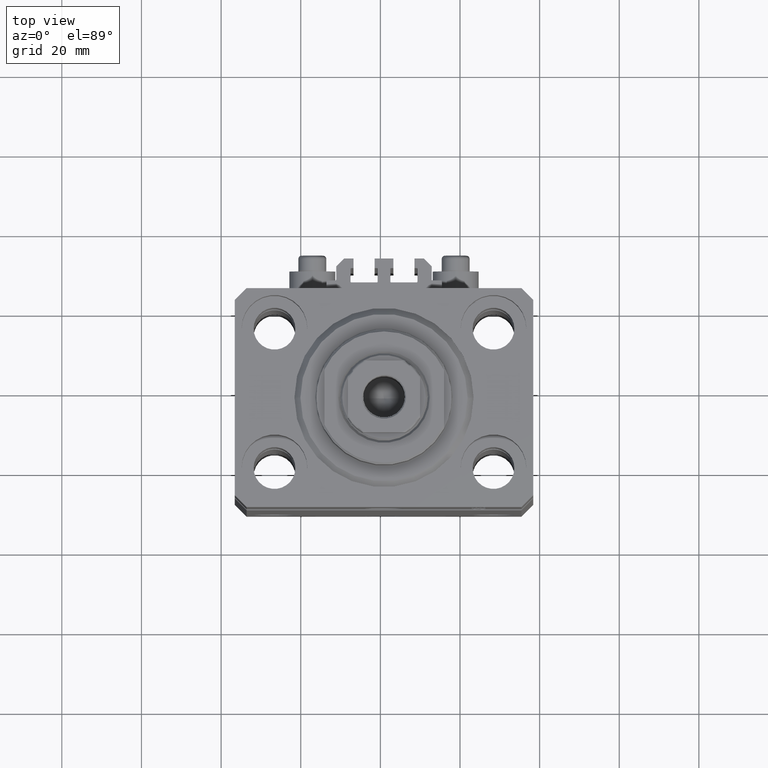
[diagram: clean part render]
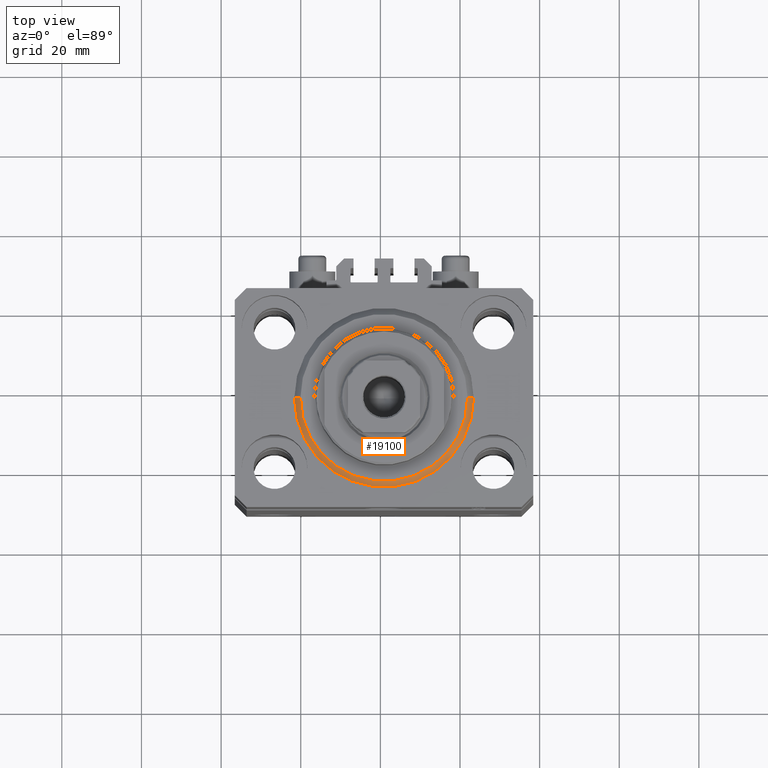
[diagram: same view with one face highlighted and labeled with its STEP entity id]
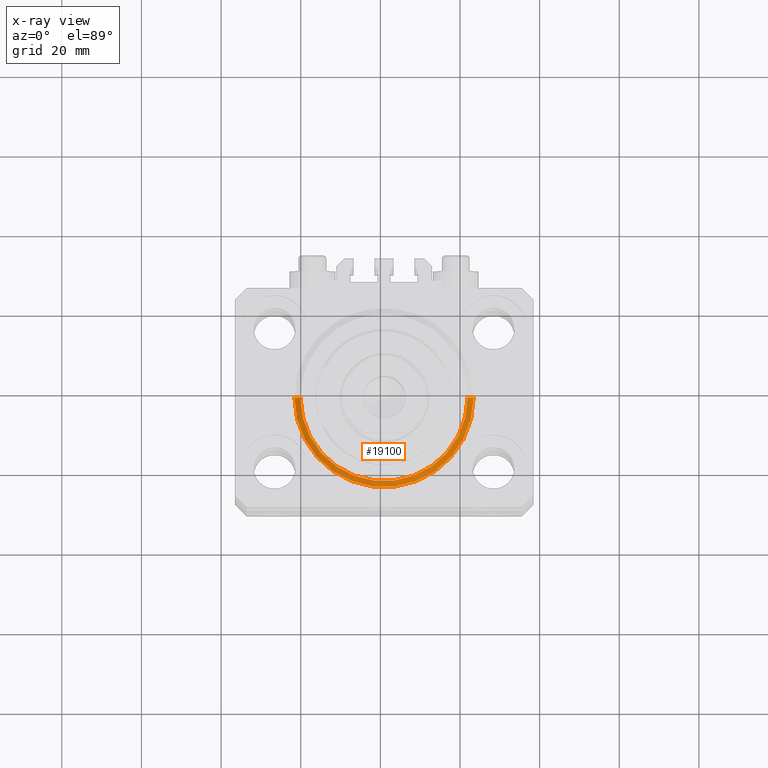
[diagram: x-ray of the same camera — body ghosted, the highlighted face saturated]
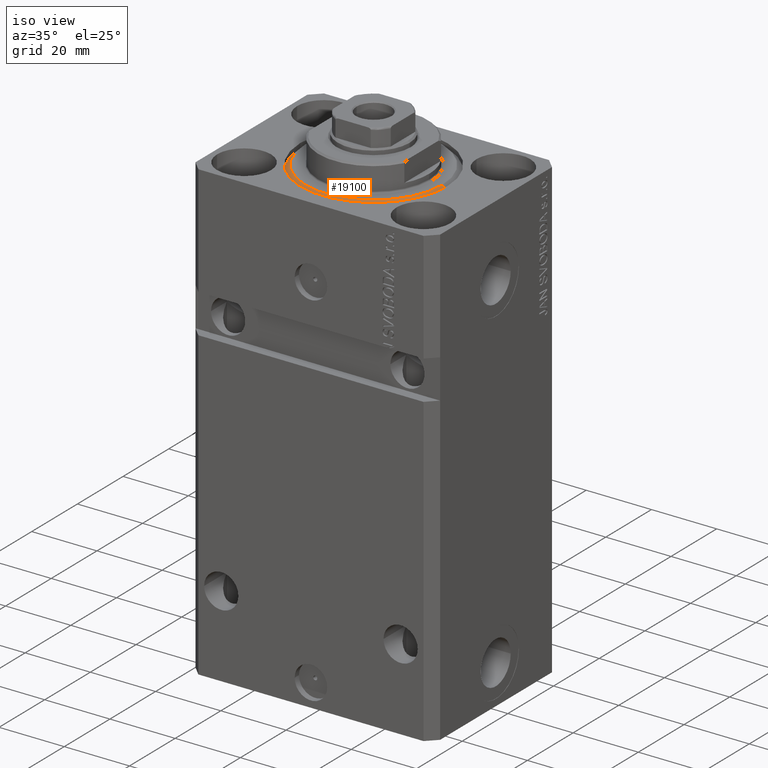
[diagram: same view with one face highlighted and labeled with its STEP entity id]
A machine part, top view. The second image highlights one B-rep face of the part: STEP entity #19100.
The next image is the same camera in x-ray: the body ghosted, the highlighted face saturated — about 0% of this face is hidden behind the body in this view.
A second angle (iso view) of the same face is appended — the face is thin or edge-on in the first view.
In plain terms, the highlighted conical surface has half-angle 45 deg.
Its self-contained STEP definition (entity closure, byte-faithful):
#1261 = DIRECTION ( 'NONE',  ( 0.7071067811865500152, 0.000000000000000000, 0.7071067811865451302 ) ) ;
#3370 = EDGE_LOOP ( 'NONE', ( #17141, #44498, #5620, #39066 ) ) ;
#3670 = CARTESIAN_POINT ( 'NONE',  ( 0.000000000000000000, 0.000000000000000000, 1.500000000000001332 ) ) ;
#4649 = AXIS2_PLACEMENT_3D ( 'NONE', #32494, #46779, #39503 ) ;
#5125 = CIRCLE ( 'NONE', #32206, 22.50000000000000355 ) ;
#5620 = ORIENTED_EDGE ( 'NONE', *, *, #24785, .T. ) ;
#6936 = VECTOR ( 'NONE', #28801, 1000.000000000000114 ) ;
#9734 = VERTEX_POINT ( 'NONE', #34542 ) ;
#11884 = CIRCLE ( 'NONE', #38928, 20.99999999999998934 ) ;
#12640 = CARTESIAN_POINT ( 'NONE',  ( 22.50000000000000355, 0.000000000000000000, 1.500000000000001332 ) ) ;
#14743 = CARTESIAN_POINT ( 'NONE',  ( -22.50000000000000355, 2.755455298081545172E-15, 1.500000000000001332 ) ) ;
#15071 = DIRECTION ( 'NONE',  ( 1.000000000000000000, 0.000000000000000000, 0.000000000000000000 ) ) ;
#15556 = VECTOR ( 'NONE', #1261, 1000.000000000000114 ) ;
#16361 = DIRECTION ( 'NONE',  ( -0.000000000000000000, -0.000000000000000000, -1.000000000000000000 ) ) ;
#17141 = ORIENTED_EDGE ( 'NONE', *, *, #18071, .F. ) ;
#17430 = LINE ( 'NONE', #14743, #6936 ) ;
#18071 = EDGE_CURVE ( 'NONE', #36080, #21666, #17430, .T. ) ;
#19100 = ADVANCED_FACE ( 'NONE', ( #32020 ), #44088, .T. ) ;
#20892 = VERTEX_POINT ( 'NONE', #27184 ) ;
#21666 = VERTEX_POINT ( 'NONE', #33956 ) ;
#24785 = EDGE_CURVE ( 'NONE', #9734, #20892, #31051, .T. ) ;
#27184 = CARTESIAN_POINT ( 'NONE',  ( 22.50000000000000355, 2.755455298081545172E-15, 1.500000000000001332 ) ) ;
#28801 = DIRECTION ( 'NONE',  ( -0.7071067811865500152, 8.659560562354963673E-17, 0.7071067811865451302 ) ) ;
#30418 = DIRECTION ( 'NONE',  ( 1.000000000000000000, 0.000000000000000000, 0.000000000000000000 ) ) ;
#31051 = LINE ( 'NONE', #12640, #15556 ) ;
#31130 = CARTESIAN_POINT ( 'NONE',  ( 0.000000000000000000, 0.000000000000000000, 0.000000000000000000 ) ) ;
#32020 = FACE_OUTER_BOUND ( 'NONE', #3370, .T. ) ;
#32206 = AXIS2_PLACEMENT_3D ( 'NONE', #3670, #36846, #15071 ) ;
#32494 = CARTESIAN_POINT ( 'NONE',  ( 0.000000000000000000, 0.000000000000000000, 1.500000000000001332 ) ) ;
#33641 = EDGE_CURVE ( 'NONE', #9734, #36080, #11884, .T. ) ;
#33956 = CARTESIAN_POINT ( 'NONE',  ( -22.50000000000000355, 0.000000000000000000, 1.500000000000001332 ) ) ;
#34542 = CARTESIAN_POINT ( 'NONE',  ( 20.99999999999998934, 0.000000000000000000, 0.000000000000000000 ) ) ;
#36080 = VERTEX_POINT ( 'NONE', #45158 ) ;
#36846 = DIRECTION ( 'NONE',  ( -0.000000000000000000, -0.000000000000000000, 1.000000000000000000 ) ) ;
#38928 = AXIS2_PLACEMENT_3D ( 'NONE', #31130, #16361, #30418 ) ;
#39066 = ORIENTED_EDGE ( 'NONE', *, *, #42924, .F. ) ;
#39503 = DIRECTION ( 'NONE',  ( 1.000000000000000000, 0.000000000000000000, 0.000000000000000000 ) ) ;
#42924 = EDGE_CURVE ( 'NONE', #21666, #20892, #5125, .T. ) ;
#44088 = CONICAL_SURFACE ( 'NONE', #4649, 22.50000000000000355, 0.7853981633974517207 ) ;
#44498 = ORIENTED_EDGE ( 'NONE', *, *, #33641, .F. ) ;
#45158 = CARTESIAN_POINT ( 'NONE',  ( -20.99999999999998934, 2.663606788145492628E-15, 0.000000000000000000 ) ) ;
#46779 = DIRECTION ( 'NONE',  ( -0.000000000000000000, -0.000000000000000000, 1.000000000000000000 ) ) ;